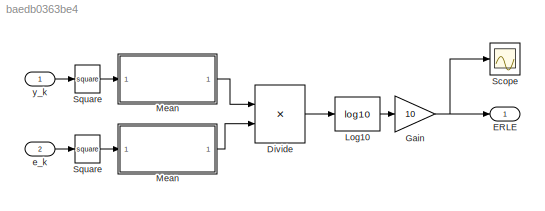
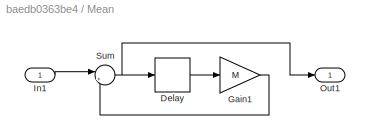
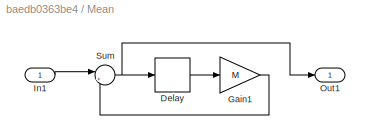
MODEL slx_baedb0363be4
KIND model
BLOCK [Product] Divide
  InputSameDT = off
  Inputs = /*
  OutDataTypeStr = Inherit: Inherit via internal rule
  Ports = [2, 1]
  RndMeth = Floor
  SaturateOnIntegerOverflow = off
BLOCK [Outport] ERLE
  IconDisplay = Port number
BLOCK [Gain] Gain
  Gain = 10
  OutDataTypeStr = Inherit: Inherit via internal rule
  ParamDataTypeStr = Inherit: Inherit via internal rule
  SaturateOnIntegerOverflow = off
BLOCK [Math] Log10
  Operator = log10
  Ports = [1, 1]
BLOCK [SubSystem] Mean
  FunctionWithSeparateData = off
  MaskHideContents = off
  MinAlgLoopOccurrences = off
  Opaque = off
  Ports = [1, 1]
  PropExecContextOutsideSubsystem = off
  RTWSystemCode = Auto
  RequestExecContextInheritance = off
BLOCK [SubSystem] Mean 
  FunctionWithSeparateData = off
  MaskHideContents = off
  MinAlgLoopOccurrences = off
  Opaque = off
  Ports = [1, 1]
  PropExecContextOutsideSubsystem = off
  RTWSystemCode = Auto
  RequestExecContextInheritance = off
BLOCK [Delay] Mean /Delay
  DelayLength = 1
  InputPortMap = u0
  Ports = [1, 1]
  SampleTime = T
BLOCK [Gain] Mean /Gain1
  Gain = M
  OutDataTypeStr = Inherit: Inherit via internal rule
  ParamDataTypeStr = Inherit: Inherit via internal rule
  SaturateOnIntegerOverflow = off
BLOCK [Inport] Mean /In1
  IconDisplay = Port number
BLOCK [Outport] Mean /Out1
  IconDisplay = Port number
BLOCK [Sum] Mean /Sum
  IconShape = round
  InputSameDT = off
  Inputs = |++
  OutDataTypeStr = Inherit: Inherit via internal rule
  Ports = [2, 1]
  SaturateOnIntegerOverflow = off
BLOCK [Delay] Mean/Delay
  DelayLength = 1
  InputPortMap = u0
  Ports = [1, 1]
  SampleTime = T
BLOCK [Gain] Mean/Gain1
  Gain = M
  OutDataTypeStr = Inherit: Inherit via internal rule
  ParamDataTypeStr = Inherit: Inherit via internal rule
  SaturateOnIntegerOverflow = off
BLOCK [Inport] Mean/In1
  IconDisplay = Port number
BLOCK [Outport] Mean/Out1
  IconDisplay = Port number
BLOCK [Sum] Mean/Sum
  IconShape = round
  InputSameDT = off
  Inputs = |++
  OutDataTypeStr = Inherit: Inherit via internal rule
  Ports = [2, 1]
  SaturateOnIntegerOverflow = off
BLOCK [Scope] Scope
  Floating = off
  NumInputPorts = 1
  Ports = [1]
  ShowLegends = off
BLOCK [Math] Square
  Operator = square
  Ports = [1, 1]
BLOCK [Math] Square 
  Operator = square
  Ports = [1, 1]
BLOCK [Inport] e_k
  IconDisplay = Port number
  Port = 2
BLOCK [Inport] y_k
  IconDisplay = Port number
LINE Divide:1 -> Log10:1
NET Gain:1 -> ERLE:1, Scope:1
LINE Log10:1 -> Gain:1
LINE Mean /Delay:1 -> Mean /Gain1:1
LINE Mean /Gain1:1 -> Mean /Sum:2
LINE Mean /In1:1 -> Mean /Sum:1
NET Mean /Sum:1 -> Mean /Delay:1, Mean /Out1:1
LINE Mean :1 -> Divide:2
LINE Mean/Delay:1 -> Mean/Gain1:1
LINE Mean/Gain1:1 -> Mean/Sum:2
LINE Mean/In1:1 -> Mean/Sum:1
NET Mean/Sum:1 -> Mean/Delay:1, Mean/Out1:1
LINE Mean:1 -> Divide:1
LINE Square :1 -> Mean :1
LINE Square:1 -> Mean:1
LINE e_k:1 -> Square :1
LINE y_k:1 -> Square:1
note: NET lines group one-source signal fan-out (src -> all destinations, sorted); 1:1 wires keep LINE
